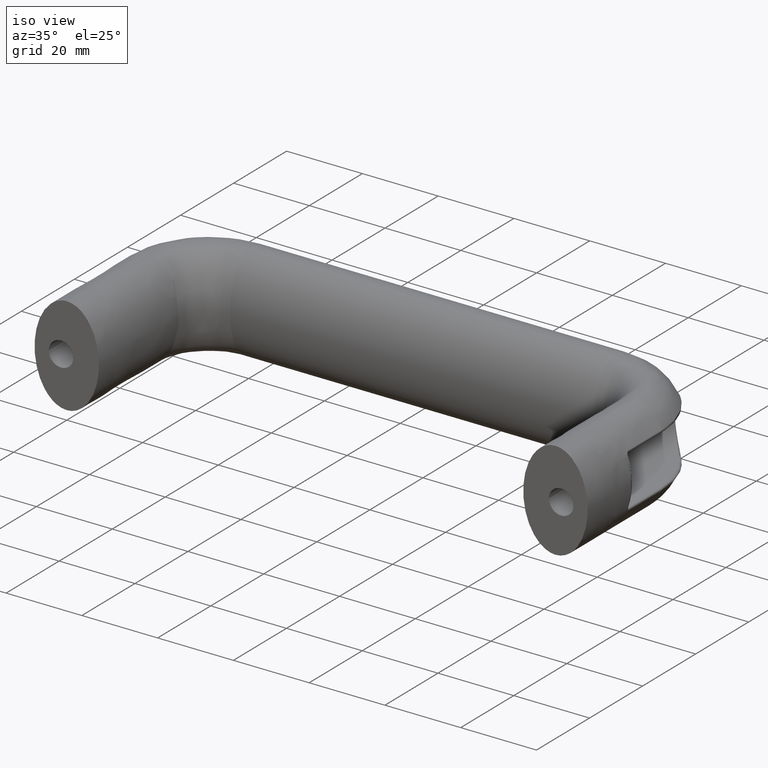
[diagram: clean part render]
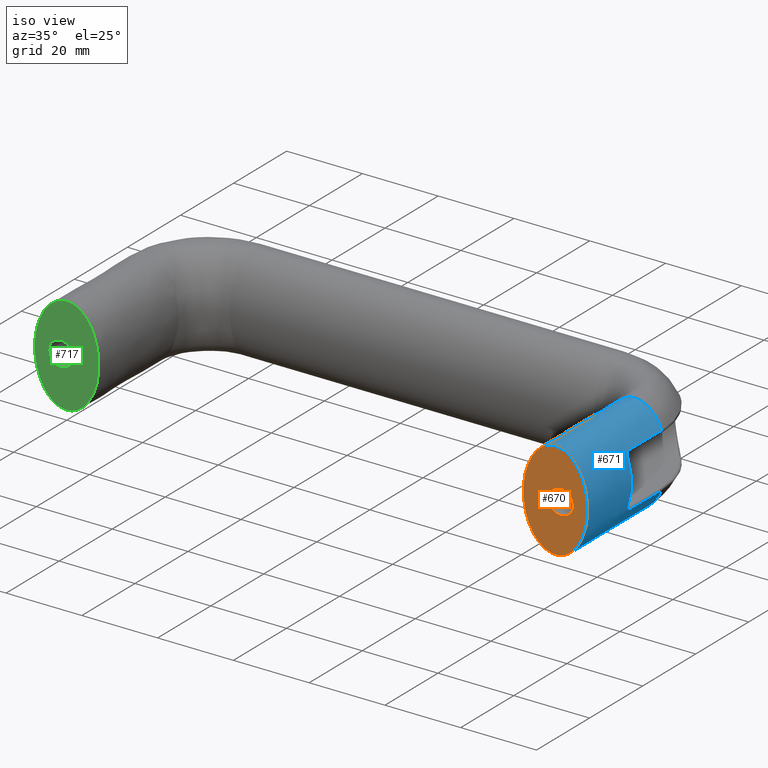
[diagram: same view with three faces highlighted in distinct colors, each labeled with its STEP entity id]
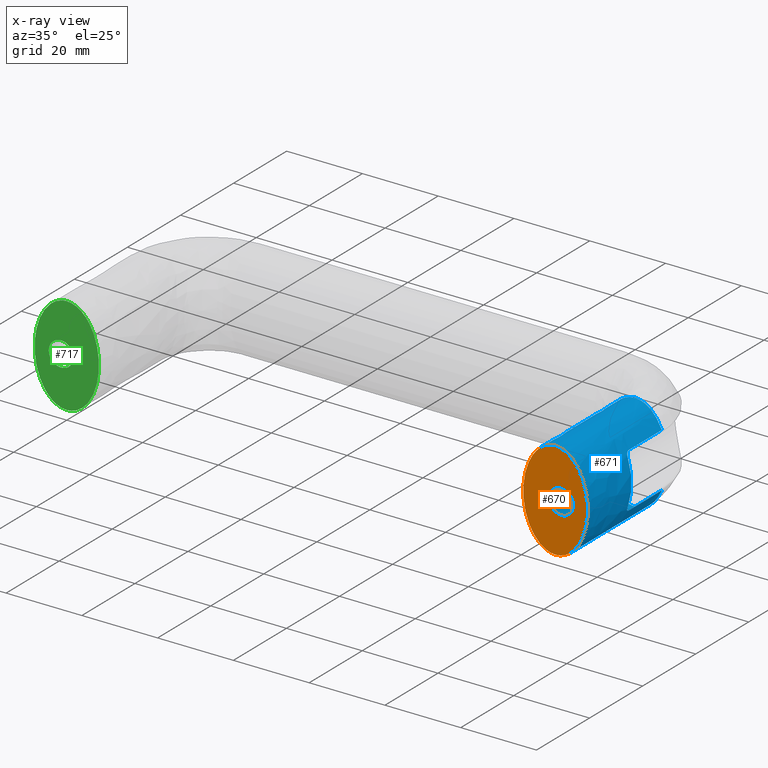
[diagram: x-ray of the same camera — body ghosted, the three highlighted faces saturated]
A machine part, iso view with three faces highlighted in distinct colors.
The next image is the same camera in x-ray (body ghosted, the three faces saturated) — at least one of them is partly hidden behind the body in this view.
Their STEP definitions:

[orange] entity #670 — the highlighted planar face has unit normal (0, -1, 0).
#96=FACE_BOUND('',#213,.T.);
#112=CIRCLE('',#724,3.25);
#152=PLANE('',#722);
#163=FACE_OUTER_BOUND('',#212,.T.);
#212=EDGE_LOOP('',(#474));
#213=EDGE_LOOP('',(#475));
#301=ELLIPSE('',#723,13.,8.5);
#313=VERTEX_POINT('',#1022);
#314=VERTEX_POINT('',#1024);
#376=EDGE_CURVE('',#313,#313,#301,.T.);
#377=EDGE_CURVE('',#314,#314,#112,.T.);
#474=ORIENTED_EDGE('',*,*,#376,.T.);
#475=ORIENTED_EDGE('',*,*,#377,.T.);
#670=ADVANCED_FACE('',(#163,#96),#152,.T.);
#722=AXIS2_PLACEMENT_3D('',#1021,#810,#811);
#723=AXIS2_PLACEMENT_3D('',#1023,#812,#813);
#724=AXIS2_PLACEMENT_3D('',#1025,#814,#815);
#810=DIRECTION('center_axis',(1.23268770453989E-15,-1.,0.));
#811=DIRECTION('ref_axis',(0.,0.,1.));
#812=DIRECTION('center_axis',(1.23268770453989E-15,-1.,0.));
#813=DIRECTION('ref_axis',(0.,0.,-1.));
#814=DIRECTION('center_axis',(-1.23268770453989E-15,1.,0.));
#815=DIRECTION('ref_axis',(1.,1.23268770453989E-15,0.));
#1021=CARTESIAN_POINT('Origin',(129.,-8.88178419700125E-15,0.));
#1022=CARTESIAN_POINT('',(129.,-3.99680288865056E-14,13.));
#1023=CARTESIAN_POINT('Origin',(129.,-2.66453525910038E-14,0.));
#1024=CARTESIAN_POINT('',(127.25,0.,1.03482654527951E-14));
#1025=CARTESIAN_POINT('Origin',(130.5,0.,9.95025524307224E-15));

[blue] entity #671 — the highlighted face is a freeform B-spline surface patch.
#52=LINE('',#1045,#74);
#53=LINE('',#1051,#75);
#54=LINE('',#1069,#76);
#74=VECTOR('',#816,30.);
#75=VECTOR('',#821,12.5);
#76=VECTOR('',#824,12.5);
#164=FACE_OUTER_BOUND('',#214,.T.);
#214=EDGE_LOOP('',(#476,#477,#478,#479,#480,#481,#482,#483,#484,#485,#486));
#277=B_SPLINE_CURVE_WITH_KNOTS('',3,(#1053,#1054,#1055,#1056,#1057,#1058),
 .UNSPECIFIED.,.F.,.F.,(4,1,1,4),(-0.162801566641001,-0.116286833315001,
-0.0697720999890006,-1.39049509932365E-19),.UNSPECIFIED.);
#278=B_SPLINE_CURVE_WITH_KNOTS('',3,(#1062,#1063,#1064,#1065,#1066,#1067),
 .UNSPECIFIED.,.F.,.F.,(4,1,1,4),(-0.162803649215565,-0.116288320868261,
-0.0930306566946086,0.),.UNSPECIFIED.);
#301=ELLIPSE('',#723,13.,8.5);
#302=ELLIPSE('',#725,13.,8.5);
#303=ELLIPSE('',#726,13.,8.5);
#304=ELLIPSE('',#727,12.9999999999921,8.499999999989);
#305=ELLIPSE('',#728,13.,8.5);
#313=VERTEX_POINT('',#1022);
#315=VERTEX_POINT('',#1044);
#316=VERTEX_POINT('',#1046);
#317=VERTEX_POINT('',#1048);
#318=VERTEX_POINT('',#1050);
#319=VERTEX_POINT('',#1052);
#320=VERTEX_POINT('',#1059);
#321=VERTEX_POINT('',#1061);
#322=VERTEX_POINT('',#1068);
#376=EDGE_CURVE('',#313,#313,#301,.T.);
#378=EDGE_CURVE('',#313,#315,#52,.T.);
#379=EDGE_CURVE('',#315,#316,#302,.T.);
#380=EDGE_CURVE('',#316,#317,#303,.T.);
#381=EDGE_CURVE('',#318,#317,#53,.T.);
#382=EDGE_CURVE('',#319,#318,#277,.T.);
#383=EDGE_CURVE('',#320,#319,#304,.T.);
#384=EDGE_CURVE('',#321,#320,#278,.T.);
#385=EDGE_CURVE('',#322,#321,#54,.T.);
#386=EDGE_CURVE('',#322,#315,#305,.T.);
#476=ORIENTED_EDGE('',*,*,#376,.F.);
#477=ORIENTED_EDGE('',*,*,#378,.T.);
#478=ORIENTED_EDGE('',*,*,#379,.T.);
#479=ORIENTED_EDGE('',*,*,#380,.T.);
#480=ORIENTED_EDGE('',*,*,#381,.F.);
#481=ORIENTED_EDGE('',*,*,#382,.F.);
#482=ORIENTED_EDGE('',*,*,#383,.F.);
#483=ORIENTED_EDGE('',*,*,#384,.F.);
#484=ORIENTED_EDGE('',*,*,#385,.F.);
#485=ORIENTED_EDGE('',*,*,#386,.T.);
#486=ORIENTED_EDGE('',*,*,#378,.F.);
#665=(
BOUNDED_SURFACE()
B_SPLINE_SURFACE(2,1,((#1026,#1027),(#1028,#1029),(#1030,#1031),(#1032,
#1033),(#1034,#1035),(#1036,#1037),(#1038,#1039),(#1040,#1041),(#1042,#1043)),
 .UNSPECIFIED.,.T.,.F.,.F.)
B_SPLINE_SURFACE_WITH_KNOTS((3,2,2,2,3),(2,2),(-3.14159265358979,-1.5707963267949,
0.,1.5707963267949,3.14159265358979),(0.,3.6),.UNSPECIFIED.)
GEOMETRIC_REPRESENTATION_ITEM()
RATIONAL_B_SPLINE_SURFACE(((1.,1.),(0.707106781186548,0.707106781186548),
(1.,1.),(0.707106781186548,0.707106781186548),(1.,1.),(0.707106781186548,
0.707106781186548),(1.,1.),(0.707106781186548,0.707106781186548),(1.,1.)))
REPRESENTATION_ITEM('')
SURFACE()
);
#671=ADVANCED_FACE('',(#164),#665,.T.);
#723=AXIS2_PLACEMENT_3D('',#1023,#812,#813);
#725=AXIS2_PLACEMENT_3D('',#1047,#817,#818);
#726=AXIS2_PLACEMENT_3D('',#1049,#819,#820);
#727=AXIS2_PLACEMENT_3D('',#1060,#822,#823);
#728=AXIS2_PLACEMENT_3D('',#1070,#825,#826);
#812=DIRECTION('center_axis',(1.23268770453989E-15,-1.,0.));
#813=DIRECTION('ref_axis',(0.,0.,-1.));
#816=DIRECTION('',(0.,1.,0.));
#817=DIRECTION('center_axis',(1.23268770453989E-15,-1.,0.));
#818=DIRECTION('ref_axis',(0.,0.,-1.));
#819=DIRECTION('center_axis',(1.23268770453989E-15,-1.,0.));
#820=DIRECTION('ref_axis',(0.,0.,-1.));
#821=DIRECTION('',(0.,1.,0.));
#822=DIRECTION('center_axis',(6.54504325104476E-15,1.,-3.60103510993588E-16));
#823=DIRECTION('ref_axis',(-1.10063350758697E-13,3.60103510994308E-16,1.));
#824=DIRECTION('',(0.,-1.,0.));
#825=DIRECTION('center_axis',(1.23268770453989E-15,-1.,0.));
#826=DIRECTION('ref_axis',(0.,0.,-1.));
#1022=CARTESIAN_POINT('',(129.,-3.99680288865056E-14,13.));
#1023=CARTESIAN_POINT('Origin',(129.,-2.66453525910038E-14,0.));
#1026=CARTESIAN_POINT('Ctrl Pts',(129.,30.,13.));
#1027=CARTESIAN_POINT('Ctrl Pts',(129.,-6.00000000000005,13.));
#1028=CARTESIAN_POINT('Ctrl Pts',(120.5,30.,13.));
#1029=CARTESIAN_POINT('Ctrl Pts',(120.5,-6.00000000000004,13.));
#1030=CARTESIAN_POINT('Ctrl Pts',(120.5,30.,0.));
#1031=CARTESIAN_POINT('Ctrl Pts',(120.5,-6.00000000000005,0.));
#1032=CARTESIAN_POINT('Ctrl Pts',(120.5,30.,-13.));
#1033=CARTESIAN_POINT('Ctrl Pts',(120.5,-6.00000000000005,-13.));
#1034=CARTESIAN_POINT('Ctrl Pts',(129.,30.,-13.));
#1035=CARTESIAN_POINT('Ctrl Pts',(129.,-6.00000000000005,-13.));
#1036=CARTESIAN_POINT('Ctrl Pts',(137.5,30.,-13.));
#1037=CARTESIAN_POINT('Ctrl Pts',(137.5,-6.00000000000005,-13.));
#1038=CARTESIAN_POINT('Ctrl Pts',(137.5,30.,0.));
#1039=CARTESIAN_POINT('Ctrl Pts',(137.5,-6.00000000000005,0.));
#1040=CARTESIAN_POINT('Ctrl Pts',(137.5,30.,13.));
#1041=CARTESIAN_POINT('Ctrl Pts',(137.5,-6.00000000000004,13.));
#1042=CARTESIAN_POINT('Ctrl Pts',(129.,30.,13.));
#1043=CARTESIAN_POINT('Ctrl Pts',(129.,-6.00000000000005,13.));
#1044=CARTESIAN_POINT('',(129.,30.,13.));
#1045=CARTESIAN_POINT('',(129.,30.,13.));
#1046=CARTESIAN_POINT('',(129.,30.,-13.));
#1047=CARTESIAN_POINT('Origin',(129.,30.,0.));
#1048=CARTESIAN_POINT('',(136.077522929227,30.,-7.19939933334355));
#1049=CARTESIAN_POINT('Origin',(129.,30.,0.));
#1050=CARTESIAN_POINT('',(136.07752292926,17.5,-7.19939933326745));
#1051=CARTESIAN_POINT('',(136.07752292926,30.,-7.19939933326745));
#1052=CARTESIAN_POINT('',(136.483005916871,16.5,-6.16613274206261));
#1053=CARTESIAN_POINT('Ctrl Pts',(136.483005916871,16.5,-6.1661327420626));
#1054=CARTESIAN_POINT('Ctrl Pts',(136.429844379381,16.499999999986,-6.31703981823364));
#1055=CARTESIAN_POINT('Ctrl Pts',(136.319248839356,16.5653333111962,-6.61635111761735));
#1056=CARTESIAN_POINT('Ctrl Pts',(136.143213401635,16.8860154293185,-7.05109419218971));
#1057=CARTESIAN_POINT('Ctrl Pts',(136.077522929227,17.2674263333701,-7.19939933334355));
#1058=CARTESIAN_POINT('Ctrl Pts',(136.077522929227,17.5,-7.19939933334355));
#1059=CARTESIAN_POINT('',(136.483005916981,16.5,6.16613274174812));
#1060=CARTESIAN_POINT('Origin',(129.000000000011,16.5000000000001,1.12909681604378E-12));
#1061=CARTESIAN_POINT('',(136.07752292926,17.5,7.19939933326746));
#1062=CARTESIAN_POINT('Ctrl Pts',(136.077522929227,17.5,7.19939933334357));
#1063=CARTESIAN_POINT('Ctrl Pts',(136.077522929227,17.344948905509,7.19939933334357));
#1064=CARTESIAN_POINT('Ctrl Pts',(136.102737876841,17.1140325497467,7.14149888366818));
#1065=CARTESIAN_POINT('Ctrl Pts',(136.230215153516,16.6666932953252,6.84058954614444));
#1066=CARTESIAN_POINT('Ctrl Pts',(136.376681481913,16.4999999998829,6.46795075493015));
#1067=CARTESIAN_POINT('Ctrl Pts',(136.483005916981,16.5,6.16613274174812));
#1068=CARTESIAN_POINT('',(136.07752292926,30.,7.19939933326746));
#1069=CARTESIAN_POINT('',(136.07752292926,30.,7.19939933326746));
#1070=CARTESIAN_POINT('Origin',(129.,30.,0.));

[green] entity #717 — the highlighted planar face has unit normal (0, 1, 0).
#111=FACE_BOUND('',#275,.T.);
#137=CIRCLE('',#773,3.25);
#161=PLANE('',#803);
#210=FACE_OUTER_BOUND('',#274,.T.);
#274=EDGE_LOOP('',(#662));
#275=EDGE_LOOP('',(#663));
#310=ELLIPSE('',#802,13.,8.5);
#348=VERTEX_POINT('',#1465);
#372=VERTEX_POINT('',#1875);
#428=EDGE_CURVE('',#348,#348,#137,.T.);
#469=EDGE_CURVE('',#372,#372,#310,.T.);
#662=ORIENTED_EDGE('',*,*,#469,.F.);
#663=ORIENTED_EDGE('',*,*,#428,.T.);
#717=ADVANCED_FACE('',(#210,#111),#161,.F.);
#773=AXIS2_PLACEMENT_3D('',#1466,#923,#924);
#802=AXIS2_PLACEMENT_3D('',#1877,#992,#993);
#803=AXIS2_PLACEMENT_3D('',#1878,#994,#995);
#923=DIRECTION('center_axis',(0.,1.,0.));
#924=DIRECTION('ref_axis',(1.,0.,0.));
#992=DIRECTION('center_axis',(0.,1.,0.));
#993=DIRECTION('ref_axis',(0.,0.,-1.));
#994=DIRECTION('center_axis',(0.,1.,0.));
#995=DIRECTION('ref_axis',(0.,0.,1.));
#1465=CARTESIAN_POINT('',(-4.75000000000002,0.,1.02878864022942E-14));
#1466=CARTESIAN_POINT('Origin',(-1.50000000000002,0.,9.88987619257135E-15));
#1875=CARTESIAN_POINT('',(1.04094977927525E-15,-9.43689570931383E-16,13.));
#1877=CARTESIAN_POINT('Origin',(0.,0.,0.));
#1878=CARTESIAN_POINT('Origin',(0.,0.,0.));